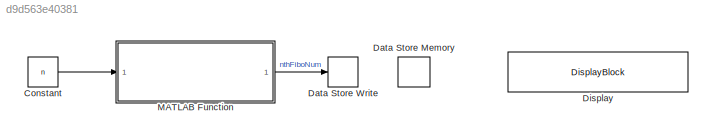
MODEL slx_d9d563e40381
KIND model
CONFIG AbsTol = auto
CONFIG EnableMultiTasking = off
CONFIG FixedStep = 1
CONFIG MaxStep = auto
CONFIG MinStep = auto
CONFIG RelTol = 1e-3
CONFIG SampleTimeConstraint = Unconstrained
CONFIG SolverName = FixedStepDiscrete
CONFIG StartTime = 0.0
CONFIG StopTime = 0.9
BLOCK [Constant] Constant
  Value = n
BLOCK [DataStoreMemory] Data Store Memory
  ShowAdditionalParam = off
  WriteAfterWriteMsg = warning
BLOCK [DataStoreWrite] Data Store Write
  IndexOptions = Index vector (dialog)
  Indices = 1
  OutputSizes = 1
BLOCK [DisplayBlock] Display
  GridColor = [0.502, 0.502, 0.502]
  LabelPosition = Hide
  Transparency = 1
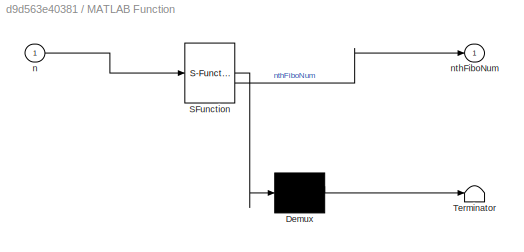
BLOCK [SubSystem] MATLAB Function
  ErrorFcn = Stateflow.Translate.translate
  PermitHierarchicalResolution = ExplicitOnly
  SFBlockType = MATLAB Function
  TreatAsAtomicUnit = on
BLOCK [Demux] MATLAB Function/ Demux 
  Outputs = 1
BLOCK [S-Function] MATLAB Function/ SFunction 
  EnableBusSupport = off
  FunctionName = sf_sfun
  PortCounts = [1 2]
  SFcnIsStateOwnerBlock = off
  SFunctionDeploymentMode = off
  Tag = Stateflow S-Function 2
BLOCK [Terminator] MATLAB Function/ Terminator 
BLOCK [Inport] MATLAB Function/n
BLOCK [Outport] MATLAB Function/nthFiboNum
LINE Constant:1 -> MATLAB Function:1
LINE MATLAB Function:1 -> Data Store Write:1
CHART MATLAB Function states=1 transitions=1
  STATE_LABEL 'eML_blk_kernel()'
  STATE_LABEL 'SCRIPT:\nfunction nthFiboNum = fibonacciCalculation(n)\n    arguments\n        n (1,1) {mustBeNumeric, mustBeNonnegative, mustBeInteger}\n    end\n\n    if n == 0\n        nthFiboNum = 0;\n        return;\n    elseif n == 1\n        nthFiboNum = 1;\n        return;\n    end\n\n    nthFiboNum = fibonacciCalculation(n-1) + fibonacciCalculation(n-2);\nend'
CHART  states=0 transitions=0
